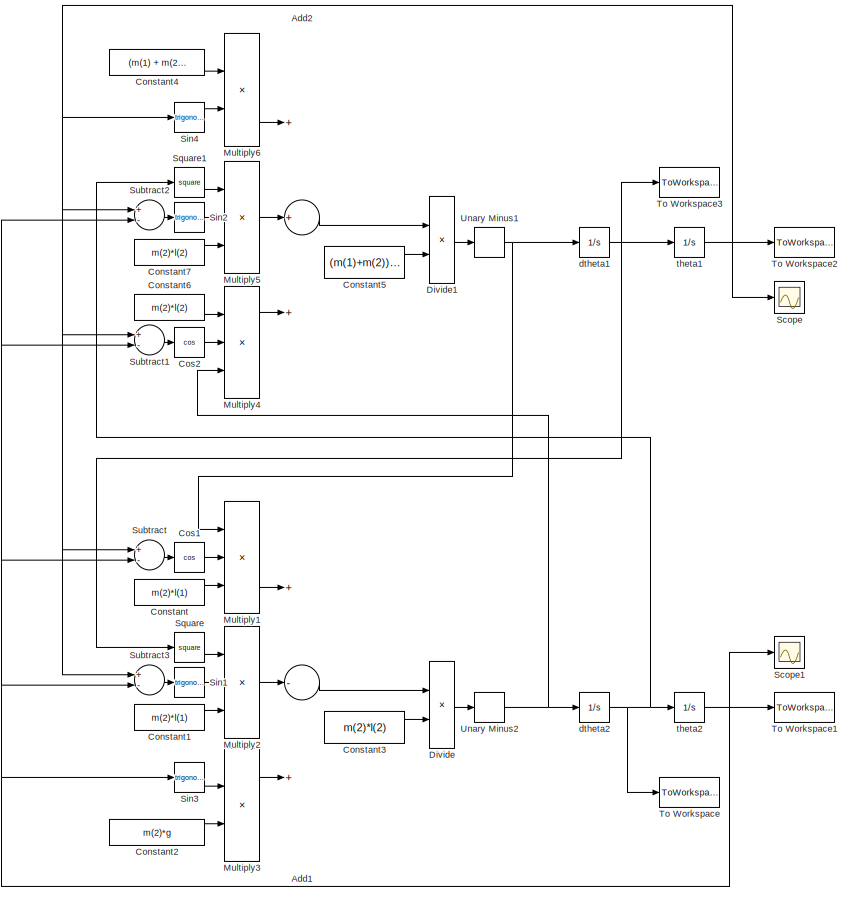
[diagram: root canvas - part 1/2, right side, full height]
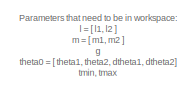
[diagram: root canvas - part 2/2, middle left region]
MODEL slx_cd7e3da220f0
KIND model
CONFIG AbsTol = auto
CONFIG EnableMultiTasking = off
CONFIG FixedStep = auto
CONFIG MaxStep = auto
CONFIG MinStep = auto
CONFIG RelTol = 1e-3
CONFIG SampleTimeConstraint = Unconstrained
CONFIG Solver = VariableStepAuto
CONFIG SolverName = VariableStepAuto
CONFIG StartTime = tmin
CONFIG StopTime = tmax
BLOCK [Sum] Add1
  InputSameDT = off
  Inputs = +-+
  OutDataTypeStr = Inherit: Inherit via internal rule
  Ports = [3, 1]
  SaturateOnIntegerOverflow = off
BLOCK [Sum] Add2
  InputSameDT = off
  Inputs = +++
  OutDataTypeStr = Inherit: Inherit via internal rule
  Ports = [3, 1]
  SaturateOnIntegerOverflow = off
BLOCK [Constant] Constant
  Value = m(2)*l(1)
BLOCK [Constant] Constant1
  Value = m(2)*l(1)
BLOCK [Constant] Constant2
  Value = m(2)*g
BLOCK [Constant] Constant3
  Value = m(2)*l(2)
BLOCK [Constant] Constant4
  Value = (m(1) + m(2))*g
BLOCK [Constant] Constant5
  Value = (m(1)+m(2))*l(1)
BLOCK [Constant] Constant6
  Value = m(2)*l(2)
BLOCK [Constant] Constant7
  Value = m(2)*l(2)
BLOCK [Trigonometry] Cos1
  Operator = cos
  Ports = [1, 1]
BLOCK [Trigonometry] Cos2
  Operator = cos
  Ports = [1, 1]
BLOCK [Product] Divide
  InputSameDT = off
  Inputs = */
  OutDataTypeStr = Inherit: Inherit via internal rule
  Ports = [2, 1]
  RndMeth = Floor
  SaturateOnIntegerOverflow = off
BLOCK [Product] Divide1
  InputSameDT = off
  Inputs = */
  OutDataTypeStr = Inherit: Inherit via internal rule
  Ports = [2, 1]
  RndMeth = Floor
  SaturateOnIntegerOverflow = off
BLOCK [Product] Multiply1
  InputSameDT = off
  Inputs = 3
  OutDataTypeStr = Inherit: Inherit via internal rule
  Ports = [3, 1]
  RndMeth = Floor
  SaturateOnIntegerOverflow = off
BLOCK [Product] Multiply2
  InputSameDT = off
  Inputs = 3
  OutDataTypeStr = Inherit: Inherit via internal rule
  Ports = [3, 1]
  RndMeth = Floor
  SaturateOnIntegerOverflow = off
BLOCK [Product] Multiply3
  InputSameDT = off
  OutDataTypeStr = Inherit: Inherit via internal rule
  Ports = [2, 1]
  RndMeth = Floor
  SaturateOnIntegerOverflow = off
BLOCK [Product] Multiply4
  InputSameDT = off
  Inputs = 3
  OutDataTypeStr = Inherit: Inherit via internal rule
  Ports = [3, 1]
  RndMeth = Floor
  SaturateOnIntegerOverflow = off
BLOCK [Product] Multiply5
  InputSameDT = off
  Inputs = 3
  OutDataTypeStr = Inherit: Inherit via internal rule
  Ports = [3, 1]
  RndMeth = Floor
  SaturateOnIntegerOverflow = off
BLOCK [Product] Multiply6
  InputSameDT = off
  OutDataTypeStr = Inherit: Inherit via internal rule
  Ports = [2, 1]
  RndMeth = Floor
  SaturateOnIntegerOverflow = off
BLOCK [Scope] Scope
  Floating = off
  NumInputPorts = 1
  Ports = [1]
  ScopeSpecificationString = Simulink.scopes.TimeScopeBlockCfg('CurrentConfiguration', extmgr.ConfigurationSet(extmgr.Configuration('Core','General UI',true),extmgr.Configuration('Core','Source UI',true),extmgr.Configuration('Sources','WiredSimulink',true),extmgr.Configuration('Visuals','Time Domain',true,'SerializedDisplays',{struct('MinYLimReal','-5.36567','MaxYLimReal','23.84325','YLabelReal','','MinYLimMag','0.00000','Max...<+1330ch>
BLOCK [Scope] Scope1
  Floating = off
  NumInputPorts = 1
  Ports = [1]
  ScopeSpecificationString = Simulink.scopes.TimeScopeBlockCfg('CurrentConfiguration', extmgr.ConfigurationSet(extmgr.Configuration('Core','General UI',true),extmgr.Configuration('Core','Source UI',true),extmgr.Configuration('Sources','WiredSimulink',true,'DataLoggingVariableName','ScopeData1'),extmgr.Configuration('Visuals','Time Domain',true,'SerializedDisplays',{struct('MinYLimReal','-20.85701','MaxYLimReal','172.0051','YL...<+1371ch>
BLOCK [Trigonometry] Sin1
  Ports = [1, 1]
BLOCK [Trigonometry] Sin2
  Ports = [1, 1]
BLOCK [Trigonometry] Sin3
  Ports = [1, 1]
BLOCK [Trigonometry] Sin4
  Ports = [1, 1]
BLOCK [Math] Square
  Operator = square
  Ports = [1, 1]
BLOCK [Math] Square1
  Operator = square
  Ports = [1, 1]
BLOCK [Sum] Subtract
  InputSameDT = off
  Inputs = +-
  OutDataTypeStr = Inherit: Inherit via internal rule
  Ports = [2, 1]
  SaturateOnIntegerOverflow = off
BLOCK [Sum] Subtract1
  InputSameDT = off
  Inputs = +-
  OutDataTypeStr = Inherit: Inherit via internal rule
  Ports = [2, 1]
  SaturateOnIntegerOverflow = off
BLOCK [Sum] Subtract2
  InputSameDT = off
  Inputs = +-
  OutDataTypeStr = Inherit: Inherit via internal rule
  Ports = [2, 1]
  SaturateOnIntegerOverflow = off
BLOCK [Sum] Subtract3
  InputSameDT = off
  Inputs = +-
  OutDataTypeStr = Inherit: Inherit via internal rule
  Ports = [2, 1]
  SaturateOnIntegerOverflow = off
BLOCK [ToWorkspace] To Workspace
  FixptAsFi = on
  MaxDataPoints = inf
  Ports = [1]
  SampleTime = -1
  Save2DSignal = 3-D array (concatenate along third dimension)
  VariableName = dtheta2
BLOCK [ToWorkspace] To Workspace1
  FixptAsFi = on
  MaxDataPoints = inf
  Ports = [1]
  SampleTime = -1
  Save2DSignal = 3-D array (concatenate along third dimension)
  VariableName = theta2
BLOCK [ToWorkspace] To Workspace2
  FixptAsFi = on
  MaxDataPoints = inf
  Ports = [1]
  SampleTime = -1
  Save2DSignal = 3-D array (concatenate along third dimension)
  VariableName = theta1
BLOCK [ToWorkspace] To Workspace3
  FixptAsFi = on
  MaxDataPoints = inf
  Ports = [1]
  SampleTime = -1
  Save2DSignal = 3-D array (concatenate along third dimension)
  VariableName = dtheta1
BLOCK [UnaryMinus] Unary Minus1
BLOCK [UnaryMinus] Unary Minus2
BLOCK [Integrator] dtheta1
  InitialCondition = theta0(3)
  Ports = [1, 1]
BLOCK [Integrator] dtheta2
  InitialCondition = theta0(4)
  Ports = [1, 1]
BLOCK [Integrator] theta1
  InitialCondition = theta0(1)
  Ports = [1, 1]
BLOCK [Integrator] theta2
  InitialCondition = theta0(2)
  Ports = [1, 1]
ANNOTATION (root): Parameters that need to be in workspace: l = [ l1, l2 ] m = [ m1, m2 ] g theta0 = [ theta1, theta2, dtheta1, dtheta2] tmin, tmax "Returned values": theta1 theta2 dtheta1 dtheta2 tout
LINE Add1:1 -> Divide:1
LINE Add2:1 -> Divide1:1
LINE Constant1:1 -> Multiply2:3
LINE Constant2:1 -> Multiply3:2
LINE Constant3:1 -> Divide:2
LINE Constant4:1 -> Multiply6:1
LINE Constant5:1 -> Divide1:2
LINE Constant6:1 -> Multiply4:1
LINE Constant7:1 -> Multiply5:3
LINE Constant:1 -> Multiply1:3
LINE Cos1:1 -> Multiply1:2
LINE Cos2:1 -> Multiply4:2
LINE Divide1:1 -> Unary Minus1:1
LINE Divide:1 -> Unary Minus2:1
LINE Multiply1:1 -> Add1:1
LINE Multiply2:1 -> Add1:2
LINE Multiply3:1 -> Add1:3
LINE Multiply4:1 -> Add2:3
LINE Multiply5:1 -> Add2:2
LINE Multiply6:1 -> Add2:1
LINE Sin1:1 -> Multiply2:2
LINE Sin2:1 -> Multiply5:2
LINE Sin3:1 -> Multiply3:1
LINE Sin4:1 -> Multiply6:2
LINE Square1:1 -> Multiply5:1
LINE Square:1 -> Multiply2:1
LINE Subtract1:1 -> Cos2:1
LINE Subtract2:1 -> Sin2:1
LINE Subtract3:1 -> Sin1:1
LINE Subtract:1 -> Cos1:1
NET Unary Minus1:1 -> Multiply1:1, dtheta1:1
NET Unary Minus2:1 -> Multiply4:3, dtheta2:1
NET dtheta1:1 -> Square:1, To Workspace3:1, theta1:1
NET dtheta2:1 -> Square1:1, To Workspace:1, theta2:1
NET theta1:1 -> Scope:1, Sin4:1, Subtract1:1, Subtract2:1, Subtract3:1, Subtract:1, To Workspace2:1
NET theta2:1 -> Scope1:1, Sin3:1, Subtract1:2, Subtract2:2, Subtract3:2, Subtract:2, To Workspace1:1
note: NET lines group one-source signal fan-out (src -> all destinations, sorted); 1:1 wires keep LINE
